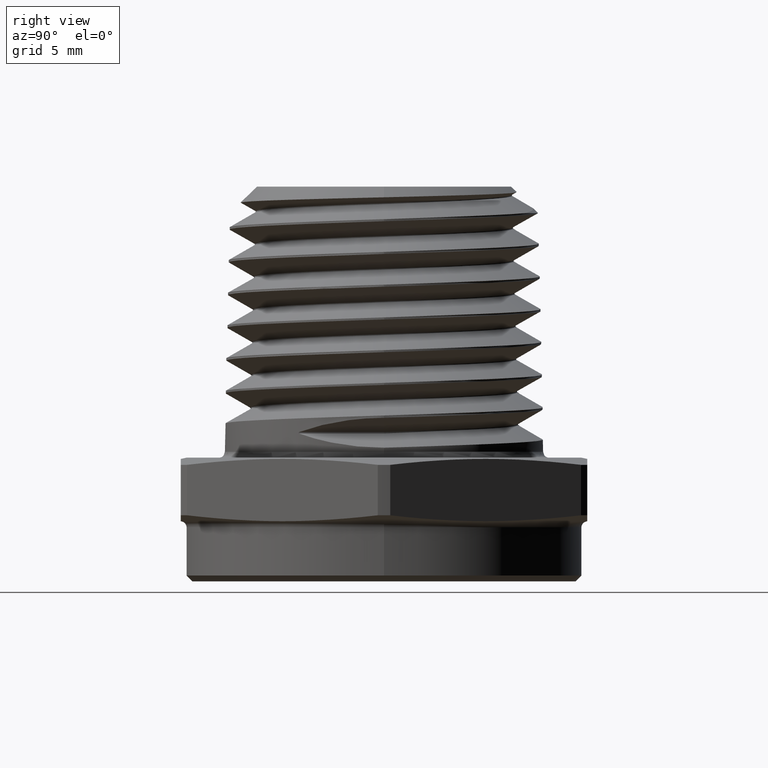
[diagram: clean part render]
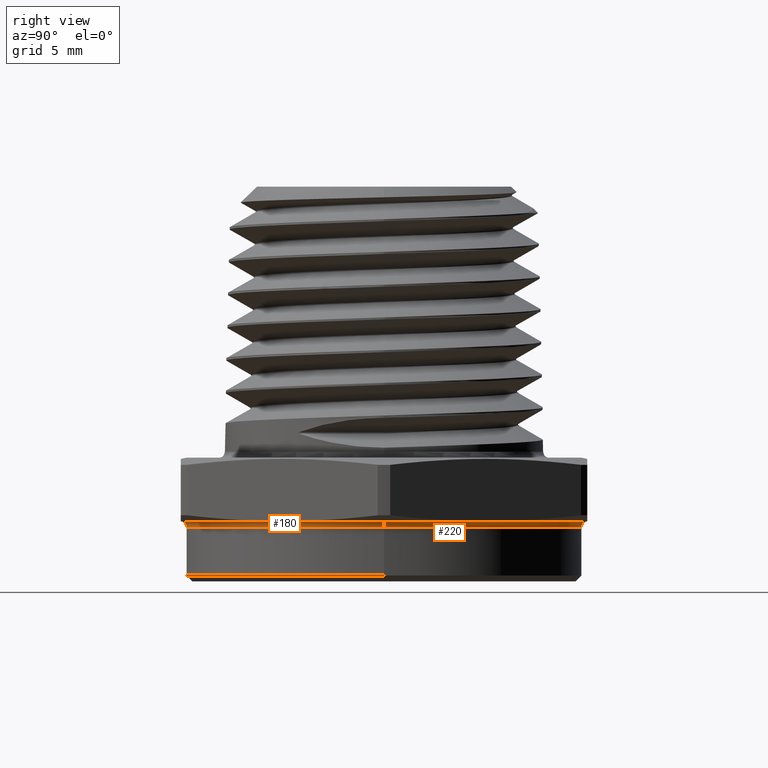
[diagram: same view with one multi-face feature highlighted, each face labeled with its STEP entity id]
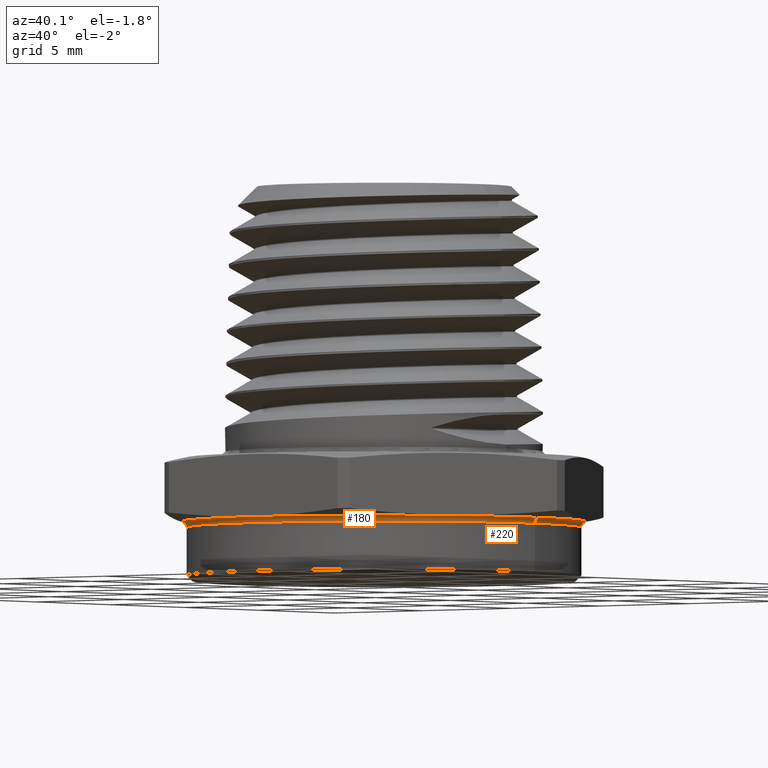
[diagram: same view with one multi-face feature highlighted, each face labeled with its STEP entity id]
A machine part, right view. The highlighted faces form ONE feature: a constant-radius fillet chain: 2 tangent blend faces with common blend radius 0.254 mm. The faces share edges in the B-rep.
A second angle (auxiliary view) of the same feature is appended — it is thin or edge-on in the first view.
Their STEP definitions:
[1] entity #220 (Torus):
#42 = ORIENTED_EDGE ( 'NONE', *, *, #72, .F. ) ;
#72 = EDGE_CURVE ( 'NONE', #645, #651, #692, .T. ) ;
#74 = EDGE_CURVE ( 'NONE', #648, #650, #694, .T. ) ;
#220 = ADVANCED_FACE ( 'NONE', ( #817 ), #821, .F. ) ;
#237 = EDGE_CURVE ( 'NONE', #651, #650, #845, .T. ) ;
#238 = EDGE_CURVE ( 'NONE', #648, #645, #846, .T. ) ;
#328 = AXIS2_PLACEMENT_3D ( 'NONE', #960, #961, #962 ) ;
#330 = AXIS2_PLACEMENT_3D ( 'NONE', #967, #968, #969 ) ;
#494 = EDGE_LOOP ( 'NONE', ( #42, #5089, #5091, #5092 ) ) ;
#645 = VERTEX_POINT ( 'NONE', #4958 ) ;
#648 = VERTEX_POINT ( 'NONE', #4961 ) ;
#650 = VERTEX_POINT ( 'NONE', #4963 ) ;
#651 = VERTEX_POINT ( 'NONE', #4964 ) ;
#692 = CIRCLE ( 'NONE', #328, 0.01000000000000003000 ) ;
#694 = CIRCLE ( 'NONE', #330, 0.01000000000000000000 ) ;
#817 = FACE_OUTER_BOUND ( 'NONE', #494, .T. ) ;
#821 = TOROIDAL_SURFACE ( 'NONE', #1723, 0.3450000000000001400, 0.01000000000000000000 ) ;
#845 = CIRCLE ( 'NONE', #1730, 0.3429208830918225600 ) ;
#846 = CIRCLE ( 'NONE', #1731, 0.3350000000000001300 ) ;
#960 = CARTESIAN_POINT ( 'NONE',  ( 0.3450000000000001400, 4.225031457058370300E-017, -0.008097840331950210600 ) ) ;
#961 = DIRECTION ( 'NONE',  ( -1.224646799147353200E-016, 1.000000000000000000, 7.498798913309275700E-033 ) ) ;
#962 = DIRECTION ( 'NONE',  ( -1.000000000000000000, -1.224646799147346800E-016, 0.0000000000000000000 ) ) ;
#967 = CARTESIAN_POINT ( 'NONE',  ( -0.3450000000000001400, 0.0000000000000000000, -0.008097840331950169000 ) ) ;
#968 = DIRECTION ( 'NONE',  ( 0.0000000000000000000, -1.000000000000000000, 0.0000000000000000000 ) ) ;
#969 = DIRECTION ( 'NONE',  ( 0.0000000000000000000, 0.0000000000000000000, -1.000000000000000000 ) ) ;
#1723 = AXIS2_PLACEMENT_3D ( 'NONE', #1812, #1814, #1817 ) ;
#1730 = AXIS2_PLACEMENT_3D ( 'NONE', #2343, #2344, #2345 ) ;
#1731 = AXIS2_PLACEMENT_3D ( 'NONE', #2346, #2347, #2348 ) ;
#1812 = CARTESIAN_POINT ( 'NONE',  ( 2.939123158941462000E-018, 0.0000000000000000000, -0.008097840331950189800 ) ) ;
#1814 = DIRECTION ( 'NONE',  ( -6.123233995736756200E-017, -0.0000000000000000000, -1.000000000000000000 ) ) ;
#1817 = DIRECTION ( 'NONE',  ( -1.000000000000000000, 0.0000000000000000000, 6.123233995736756200E-017 ) ) ;
#2343 = CARTESIAN_POINT ( 'NONE',  ( 3.538065823107628800E-018, 0.0000000000000000000, 0.001683635675388010700 ) ) ;
#2344 = DIRECTION ( 'NONE',  ( 1.224646799147351200E-016, 0.0000000000000000000, 1.000000000000000000 ) ) ;
#2345 = DIRECTION ( 'NONE',  ( 1.000000000000000000, 0.0000000000000000000, -1.221412310369414400E-016 ) ) ;
#2346 = CARTESIAN_POINT ( 'NONE',  ( 0.0000000000000000000, 0.0000000000000000000, -0.008097840331950181100 ) ) ;
#2347 = DIRECTION ( 'NONE',  ( -6.123233995736756200E-017, -0.0000000000000000000, -1.000000000000000000 ) ) ;
#2348 = DIRECTION ( 'NONE',  ( -1.000000000000000000, 0.0000000000000000000, 6.052368456112520800E-017 ) ) ;
#4958 = CARTESIAN_POINT ( 'NONE',  ( 0.3350000000000001300, 0.0000000000000000000, -0.008097840331950201900 ) ) ;
#4961 = CARTESIAN_POINT ( 'NONE',  ( -0.3350000000000001300, 4.102566777143634000E-017, -0.008097840331950160300 ) ) ;
#4963 = CARTESIAN_POINT ( 'NONE',  ( -0.3429208830918230600, 4.199569618391848700E-017, 0.001683635675388055500 ) ) ;
#4964 = CARTESIAN_POINT ( 'NONE',  ( 0.3429208830918230600, 0.0000000000000000000, 0.001683635675387967900 ) ) ;
#5089 = ORIENTED_EDGE ( 'NONE', *, *, #238, .F. ) ;
#5091 = ORIENTED_EDGE ( 'NONE', *, *, #74, .T. ) ;
#5092 = ORIENTED_EDGE ( 'NONE', *, *, #237, .F. ) ;
[2] entity #180 (Torus):
#71 = EDGE_CURVE ( 'NONE', #645, #648, #691, .T. ) ;
#72 = EDGE_CURVE ( 'NONE', #645, #651, #692, .T. ) ;
#73 = EDGE_CURVE ( 'NONE', #650, #651, #693, .T. ) ;
#74 = EDGE_CURVE ( 'NONE', #648, #650, #694, .T. ) ;
#180 = ADVANCED_FACE ( 'NONE', ( #743 ), #748, .F. ) ;
#327 = AXIS2_PLACEMENT_3D ( 'NONE', #957, #958, #959 ) ;
#328 = AXIS2_PLACEMENT_3D ( 'NONE', #960, #961, #962 ) ;
#329 = AXIS2_PLACEMENT_3D ( 'NONE', #963, #964, #965 ) ;
#330 = AXIS2_PLACEMENT_3D ( 'NONE', #967, #968, #969 ) ;
#508 = EDGE_LOOP ( 'NONE', ( #603, #604, #605, #606 ) ) ;
#603 = ORIENTED_EDGE ( 'NONE', *, *, #71, .F. ) ;
#604 = ORIENTED_EDGE ( 'NONE', *, *, #72, .T. ) ;
#605 = ORIENTED_EDGE ( 'NONE', *, *, #73, .F. ) ;
#606 = ORIENTED_EDGE ( 'NONE', *, *, #74, .F. ) ;
#645 = VERTEX_POINT ( 'NONE', #4958 ) ;
#648 = VERTEX_POINT ( 'NONE', #4961 ) ;
#650 = VERTEX_POINT ( 'NONE', #4963 ) ;
#651 = VERTEX_POINT ( 'NONE', #4964 ) ;
#691 = CIRCLE ( 'NONE', #327, 0.3350000000000001300 ) ;
#692 = CIRCLE ( 'NONE', #328, 0.01000000000000003000 ) ;
#693 = CIRCLE ( 'NONE', #329, 0.3429208830918225600 ) ;
#694 = CIRCLE ( 'NONE', #330, 0.01000000000000000000 ) ;
#743 = FACE_OUTER_BOUND ( 'NONE', #508, .T. ) ;
#748 = TOROIDAL_SURFACE ( 'NONE', #1685, 0.3450000000000001400, 0.01000000000000000000 ) ;
#957 = CARTESIAN_POINT ( 'NONE',  ( 0.0000000000000000000, 0.0000000000000000000, -0.008097840331950181100 ) ) ;
#958 = DIRECTION ( 'NONE',  ( -6.123233995736756200E-017, -0.0000000000000000000, -1.000000000000000000 ) ) ;
#959 = DIRECTION ( 'NONE',  ( -1.000000000000000000, 0.0000000000000000000, 6.052368456112520800E-017 ) ) ;
#960 = CARTESIAN_POINT ( 'NONE',  ( 0.3450000000000001400, 4.225031457058370300E-017, -0.008097840331950210600 ) ) ;
#961 = DIRECTION ( 'NONE',  ( -1.224646799147353200E-016, 1.000000000000000000, 7.498798913309275700E-033 ) ) ;
#962 = DIRECTION ( 'NONE',  ( -1.000000000000000000, -1.224646799147346800E-016, 0.0000000000000000000 ) ) ;
#963 = CARTESIAN_POINT ( 'NONE',  ( 3.538065823107628800E-018, 0.0000000000000000000, 0.001683635675388010700 ) ) ;
#964 = DIRECTION ( 'NONE',  ( 1.224646799147351200E-016, 0.0000000000000000000, 1.000000000000000000 ) ) ;
#965 = DIRECTION ( 'NONE',  ( 1.000000000000000000, 0.0000000000000000000, -1.221412310369414400E-016 ) ) ;
#967 = CARTESIAN_POINT ( 'NONE',  ( -0.3450000000000001400, 0.0000000000000000000, -0.008097840331950169000 ) ) ;
#968 = DIRECTION ( 'NONE',  ( 0.0000000000000000000, -1.000000000000000000, 0.0000000000000000000 ) ) ;
#969 = DIRECTION ( 'NONE',  ( 0.0000000000000000000, 0.0000000000000000000, -1.000000000000000000 ) ) ;
#1586 = DIRECTION ( 'NONE',  ( -6.123233995736756200E-017, -0.0000000000000000000, -1.000000000000000000 ) ) ;
#1588 = CARTESIAN_POINT ( 'NONE',  ( 2.939123158941462000E-018, 0.0000000000000000000, -0.008097840331950189800 ) ) ;
#1590 = DIRECTION ( 'NONE',  ( -1.000000000000000000, 0.0000000000000000000, 6.123233995736756200E-017 ) ) ;
#1685 = AXIS2_PLACEMENT_3D ( 'NONE', #1588, #1586, #1590 ) ;
#4958 = CARTESIAN_POINT ( 'NONE',  ( 0.3350000000000001300, 0.0000000000000000000, -0.008097840331950201900 ) ) ;
#4961 = CARTESIAN_POINT ( 'NONE',  ( -0.3350000000000001300, 4.102566777143634000E-017, -0.008097840331950160300 ) ) ;
#4963 = CARTESIAN_POINT ( 'NONE',  ( -0.3429208830918230600, 4.199569618391848700E-017, 0.001683635675388055500 ) ) ;
#4964 = CARTESIAN_POINT ( 'NONE',  ( 0.3429208830918230600, 0.0000000000000000000, 0.001683635675387967900 ) ) ;